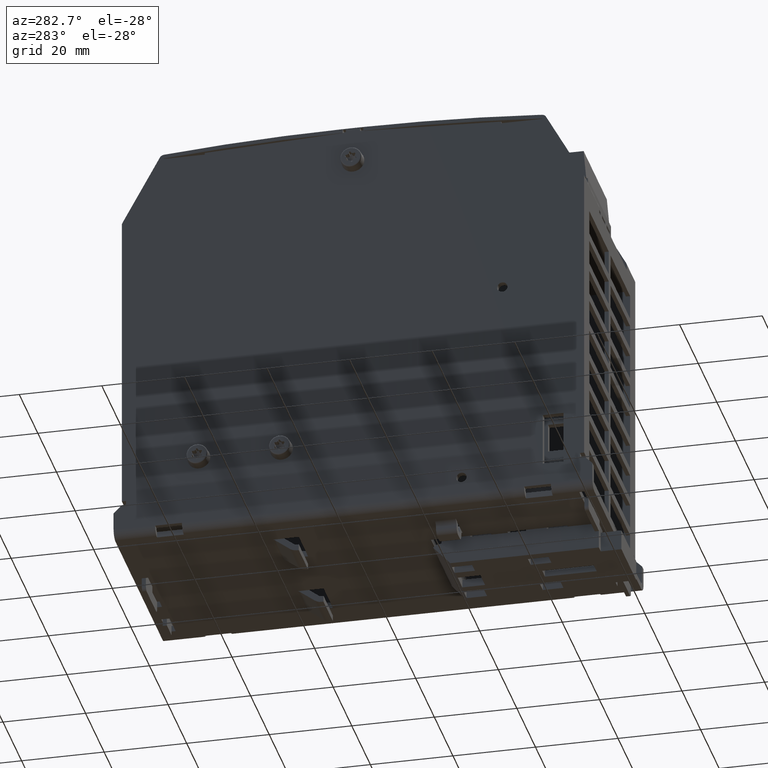
[diagram: clean part render]
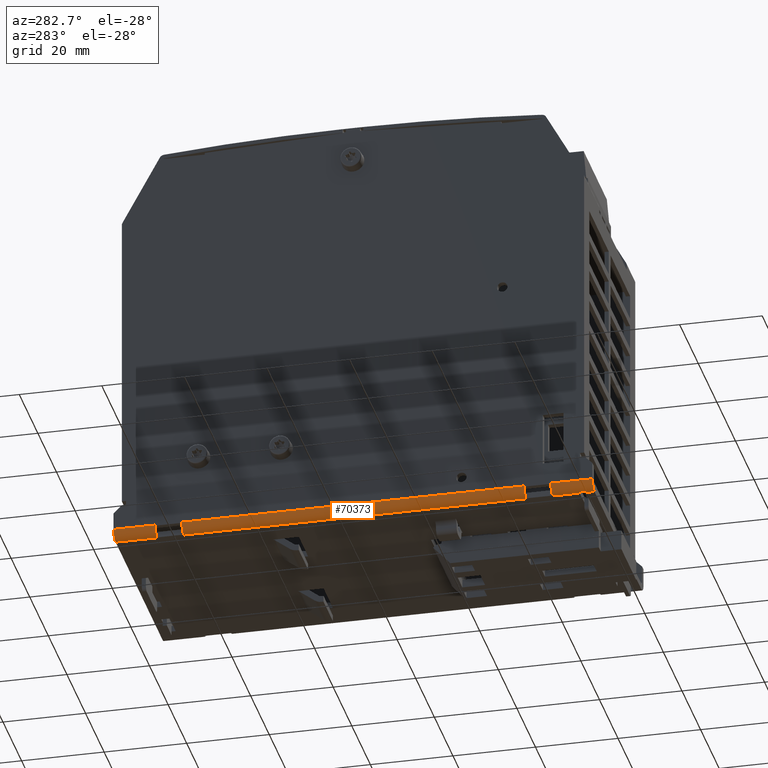
[diagram: same view with one face highlighted and labeled with its STEP entity id]
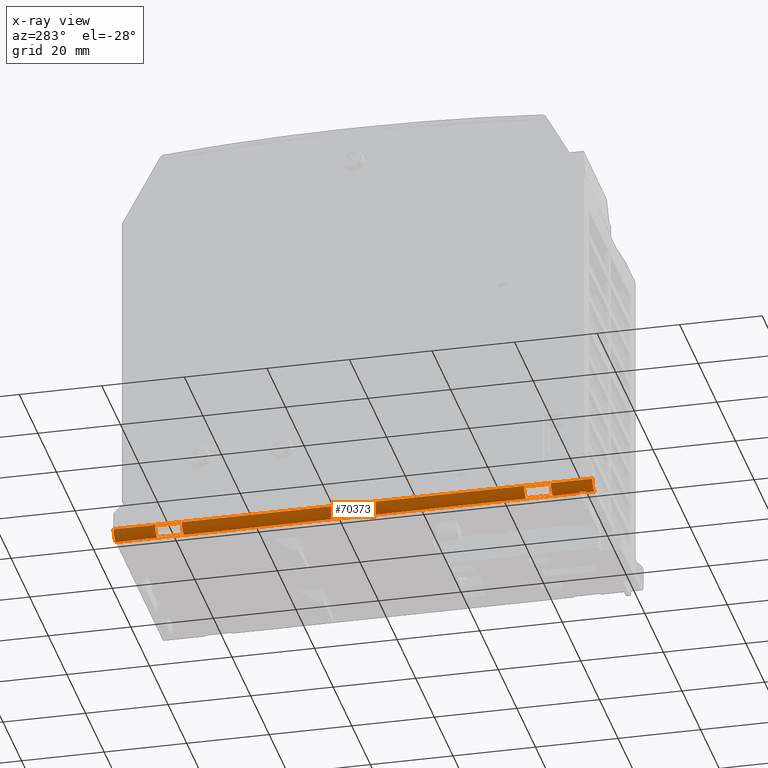
[diagram: x-ray of the same camera — body ghosted, the highlighted face saturated]
A machine part, auxiliary view. The second image highlights one B-rep face of the part: STEP entity #70373.
The next image is the same camera in x-ray: the body ghosted, the highlighted face saturated — about 0% of this face is hidden behind the body in this view.
In plain terms, the highlighted cylindrical surface (edge-blend (fillet) strip) has radius 2.25 mm, axis along (0, 1, 0).
Its self-contained STEP definition (entity closure, byte-faithful):
#66097=CARTESIAN_POINT('',(-0.994094488188978,-2.283464566929135,2.098059E-015));
#66098=VERTEX_POINT('',#66097);
#66105=CARTESIAN_POINT('',(-0.994094488188978,-2.202755905511812,2.108987E-015));
#66106=VERTEX_POINT('',#66105);
#66107=CARTESIAN_POINT('',(-0.994094488188978,-2.283464566929135,2.098059E-015));
#66108=DIRECTION('',(0.0,1.0,0.0));
#66109=VECTOR('',#66108,0.080708661417324);
#66110=LINE('',#66107,#66109);
#66111=EDGE_CURVE('',#66098,#66106,#66110,.T.);
#66138=CARTESIAN_POINT('',(-0.994094488188978,-2.143700787401575,2.108987E-015));
#66139=VERTEX_POINT('',#66138);
#66146=CARTESIAN_POINT('',(-0.994094488188978,2.283464566929135,2.098059E-015));
#66147=VERTEX_POINT('',#66146);
#66148=CARTESIAN_POINT('',(-0.994094488188978,-2.143700787401575,2.108987E-015));
#66149=DIRECTION('',(0.0,1.0,0.0));
#66150=VECTOR('',#66149,4.42716535433071);
#66151=LINE('',#66148,#66150);
#66152=EDGE_CURVE('',#66139,#66147,#66151,.T.);
#67400=CARTESIAN_POINT('',(-1.082677165354331,2.283464566929135,0.088582677165357));
#67401=VERTEX_POINT('',#67400);
#67408=CARTESIAN_POINT('',(-1.082677165354331,-2.283464566929135,0.088582677165357));
#67409=VERTEX_POINT('',#67408);
#67410=CARTESIAN_POINT('',(-1.082677165354331,2.283464566929135,0.088582677165357));
#67411=DIRECTION('',(0.0,-1.0,0.0));
#67412=VECTOR('',#67411,4.56692913385827);
#67413=LINE('',#67410,#67412);
#67414=EDGE_CURVE('',#67401,#67409,#67413,.T.);
#67821=CARTESIAN_POINT('',(-1.082420261046676,-1.887795275590552,0.081841123718896));
#67822=VERTEX_POINT('',#67821);
#67823=CARTESIAN_POINT('',(-1.000836041635437,-1.887795275590552,0.000256904307657));
#67824=VERTEX_POINT('',#67823);
#67825=CARTESIAN_POINT('',(-0.994094488188977,-1.887795275590552,0.088582677165356));
#67826=DIRECTION('',(0.0,-1.0,0.0));
#67827=DIRECTION('',(-0.997099835815806,0.0,-0.076104647795603));
#67828=AXIS2_PLACEMENT_3D('',#67825,#67826,#67827);
#67829=CIRCLE('',#67828,0.088582677165354);
#67830=EDGE_CURVE('',#67822,#67824,#67829,.T.);
#67863=CARTESIAN_POINT('',(-1.000836041635437,-1.631889763779528,0.000256904307657));
#67864=VERTEX_POINT('',#67863);
#67865=CARTESIAN_POINT('',(-1.000836041635437,-1.887795275590552,0.000256904307657));
#67866=DIRECTION('',(0.0,1.0,0.0));
#67867=VECTOR('',#67866,0.255905511811024);
#67868=LINE('',#67865,#67867);
#67869=EDGE_CURVE('',#67824,#67864,#67868,.T.);
#67894=CARTESIAN_POINT('',(-1.082420261046676,-1.631889763779528,0.081841123718895));
#67895=VERTEX_POINT('',#67894);
#67896=CARTESIAN_POINT('',(-0.994094488188977,-1.631889763779528,0.088582677165356));
#67897=DIRECTION('',(0.0,1.0,0.0));
#67898=DIRECTION('',(-0.076104647795591,0.0,-0.997099835815807));
#67899=AXIS2_PLACEMENT_3D('',#67896,#67897,#67898);
#67900=CIRCLE('',#67899,0.088582677165354);
#67901=EDGE_CURVE('',#67864,#67895,#67900,.T.);
#67927=CARTESIAN_POINT('',(-1.082420261046676,-1.631889763779528,0.081841123718895));
#67928=DIRECTION('',(0.0,-1.0,0.0));
#67929=VECTOR('',#67928,0.255905511811024);
#67930=LINE('',#67927,#67929);
#67931=EDGE_CURVE('',#67895,#67822,#67930,.T.);
#67949=CARTESIAN_POINT('',(-1.082420261046677,1.631889763779528,0.081841123718897));
#67950=VERTEX_POINT('',#67949);
#67951=CARTESIAN_POINT('',(-1.000836041635438,1.631889763779528,0.000256904307657));
#67952=VERTEX_POINT('',#67951);
#67953=CARTESIAN_POINT('',(-0.994094488188977,1.631889763779528,0.088582677165356));
#67954=DIRECTION('',(0.0,-1.0,0.0));
#67955=DIRECTION('',(-0.997099835815807,0.0,-0.076104647795592));
#67956=AXIS2_PLACEMENT_3D('',#67953,#67954,#67955);
#67957=CIRCLE('',#67956,0.088582677165354);
#67958=EDGE_CURVE('',#67950,#67952,#67957,.T.);
#67991=CARTESIAN_POINT('',(-1.000836041635438,1.887795275590552,0.000256904307657));
#67992=VERTEX_POINT('',#67991);
#67993=CARTESIAN_POINT('',(-1.000836041635438,1.631889763779528,0.000256904307657));
#67994=DIRECTION('',(0.0,1.0,0.0));
#67995=VECTOR('',#67994,0.255905511811024);
#67996=LINE('',#67993,#67995);
#67997=EDGE_CURVE('',#67952,#67992,#67996,.T.);
#68022=CARTESIAN_POINT('',(-1.082420261046677,1.887795275590552,0.081841123718897));
#68023=VERTEX_POINT('',#68022);
#68024=CARTESIAN_POINT('',(-0.994094488188977,1.887795275590552,0.088582677165356));
#68025=DIRECTION('',(0.0,1.0,0.0));
#68026=DIRECTION('',(-0.076104647795601,0.0,-0.997099835815806));
#68027=AXIS2_PLACEMENT_3D('',#68024,#68025,#68026);
#68028=CIRCLE('',#68027,0.088582677165354);
#68029=EDGE_CURVE('',#67992,#68023,#68028,.T.);
#68055=CARTESIAN_POINT('',(-1.082420261046677,1.887795275590552,0.081841123718897));
#68056=DIRECTION('',(0.0,-1.0,0.0));
#68057=VECTOR('',#68056,0.255905511811024);
#68058=LINE('',#68055,#68057);
#68059=EDGE_CURVE('',#68023,#67950,#68058,.T.);
#68115=CARTESIAN_POINT('',(-1.011811023622049,-2.202755905511812,0.001789733523433));
#68116=VERTEX_POINT('',#68115);
#68117=CARTESIAN_POINT('',(-0.994094488188977,-2.202755905511812,0.088582677165356));
#68118=DIRECTION('',(0.0,-1.0,0.0));
#68119=DIRECTION('',(-0.200000000000005,0.0,-0.97979589711327));
#68120=AXIS2_PLACEMENT_3D('',#68117,#68118,#68119);
#68121=CIRCLE('',#68120,0.088582677165354);
#68122=EDGE_CURVE('',#68116,#66106,#68121,.T.);
#70237=CARTESIAN_POINT('',(-1.011811023622049,-2.143700787401575,0.001789733523433));
#70238=VERTEX_POINT('',#70237);
#70239=CARTESIAN_POINT('',(-1.011811023622049,-2.143700787401575,0.001789733523433));
#70240=DIRECTION('',(0.0,-1.0,0.0));
#70241=VECTOR('',#70240,0.059055118110237);
#70242=LINE('',#70239,#70241);
#70243=EDGE_CURVE('',#70238,#68116,#70242,.T.);
#70306=CARTESIAN_POINT('',(-0.994094488188977,-2.143700787401575,0.088582677165356));
#70307=DIRECTION('',(0.0,1.0,0.0));
#70308=DIRECTION('',(0.0,0.0,-1.0));
#70309=AXIS2_PLACEMENT_3D('',#70306,#70307,#70308);
#70310=CIRCLE('',#70309,0.088582677165354);
#70311=EDGE_CURVE('',#66139,#70238,#70310,.T.);
#70316=CARTESIAN_POINT('',(-0.994094488188977,0.0,0.088582677165356));
#70317=DIRECTION('',(0.0,1.0,0.0));
#70318=DIRECTION('',(0.0,0.0,-1.0));
#70319=AXIS2_PLACEMENT_3D('',#70316,#70317,#70318);
#70320=CYLINDRICAL_SURFACE('',#70319,0.088582677165354);
#70321=ORIENTED_EDGE('',*,*,#70311,.T.);
#70322=ORIENTED_EDGE('',*,*,#70243,.T.);
#70323=ORIENTED_EDGE('',*,*,#68122,.T.);
#70324=ORIENTED_EDGE('',*,*,#66111,.F.);
#70325=CARTESIAN_POINT('',(-1.023622047244096,-2.283464566929135,0.005066128206316));
#70326=VERTEX_POINT('',#70325);
#70327=CARTESIAN_POINT('',(-0.994094488188977,-2.283464566929135,0.088582677165356));
#70328=DIRECTION('',(0.0,-1.0,0.0));
#70329=DIRECTION('',(-0.333333333333342,0.0,-0.94280904158206));
#70330=AXIS2_PLACEMENT_3D('',#70327,#70328,#70329);
#70331=CIRCLE('',#70330,0.088582677165354);
#70332=EDGE_CURVE('',#70326,#66098,#70331,.T.);
#70333=ORIENTED_EDGE('',*,*,#70332,.F.);
#70334=CARTESIAN_POINT('',(-0.994094488188977,-2.283464566929135,0.088582677165356));
#70335=DIRECTION('',(0.0,-1.0,0.0));
#70336=DIRECTION('',(-1.0,0.0,0.0));
#70337=AXIS2_PLACEMENT_3D('',#70334,#70335,#70336);
#70338=CIRCLE('',#70337,0.088582677165354);
#70339=EDGE_CURVE('',#67409,#70326,#70338,.T.);
#70340=ORIENTED_EDGE('',*,*,#70339,.F.);
#70341=ORIENTED_EDGE('',*,*,#67414,.F.);
#70342=CARTESIAN_POINT('',(-1.023622047244096,2.283464566929135,0.005066128206316));
#70343=VERTEX_POINT('',#70342);
#70344=CARTESIAN_POINT('',(-0.994094488188977,2.283464566929135,0.088582677165356));
#70345=DIRECTION('',(0.0,1.0,0.0));
#70346=DIRECTION('',(-0.333333333333342,0.0,-0.94280904158206));
#70347=AXIS2_PLACEMENT_3D('',#70344,#70345,#70346);
#70348=CIRCLE('',#70347,0.088582677165354);
#70349=EDGE_CURVE('',#70343,#67401,#70348,.T.);
#70350=ORIENTED_EDGE('',*,*,#70349,.F.);
#70351=CARTESIAN_POINT('',(-0.994094488188977,2.283464566929135,0.088582677165356));
#70352=DIRECTION('',(0.0,1.0,0.0));
#70353=DIRECTION('',(0.0,0.0,-1.0));
#70354=AXIS2_PLACEMENT_3D('',#70351,#70352,#70353);
#70355=CIRCLE('',#70354,0.088582677165354);
#70356=EDGE_CURVE('',#66147,#70343,#70355,.T.);
#70357=ORIENTED_EDGE('',*,*,#70356,.F.);
#70358=ORIENTED_EDGE('',*,*,#66152,.F.);
#70359=EDGE_LOOP('',(#70321,#70322,#70323,#70324,#70333,#70340,#70341,#70350,#70357,#70358));
#70360=FACE_OUTER_BOUND('',#70359,.T.);
#70361=ORIENTED_EDGE('',*,*,#67830,.T.);
#70362=ORIENTED_EDGE('',*,*,#67869,.T.);
#70363=ORIENTED_EDGE('',*,*,#67901,.T.);
#70364=ORIENTED_EDGE('',*,*,#67931,.T.);
#70365=EDGE_LOOP('',(#70361,#70362,#70363,#70364));
#70366=FACE_BOUND('',#70365,.T.);
#70367=ORIENTED_EDGE('',*,*,#67958,.T.);
#70368=ORIENTED_EDGE('',*,*,#67997,.T.);
#70369=ORIENTED_EDGE('',*,*,#68029,.T.);
#70370=ORIENTED_EDGE('',*,*,#68059,.T.);
#70371=EDGE_LOOP('',(#70367,#70368,#70369,#70370));
#70372=FACE_BOUND('',#70371,.T.);
#70373=ADVANCED_FACE('',(#70360,#70366,#70372),#70320,.T.);